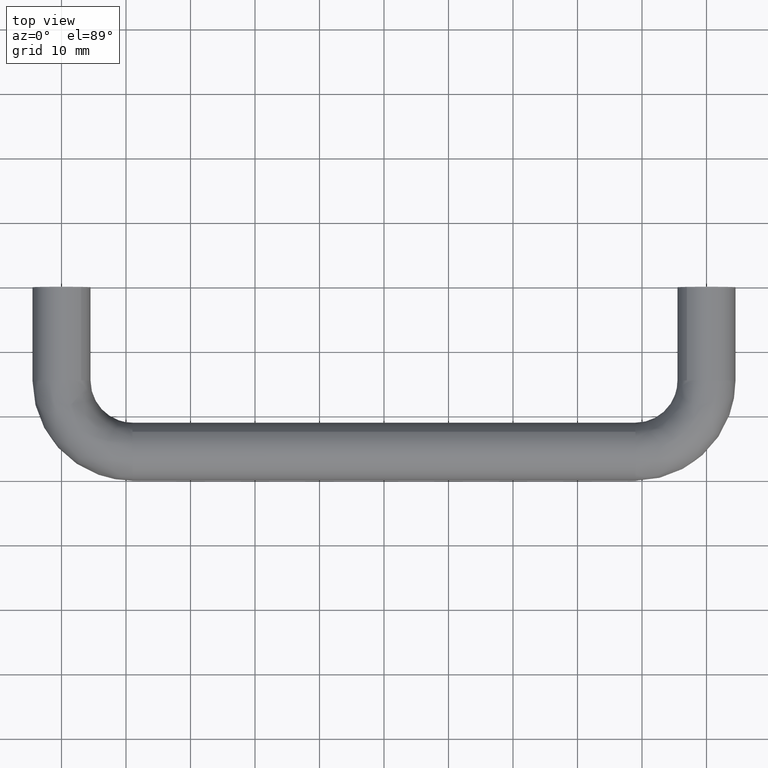
[diagram: clean part render]
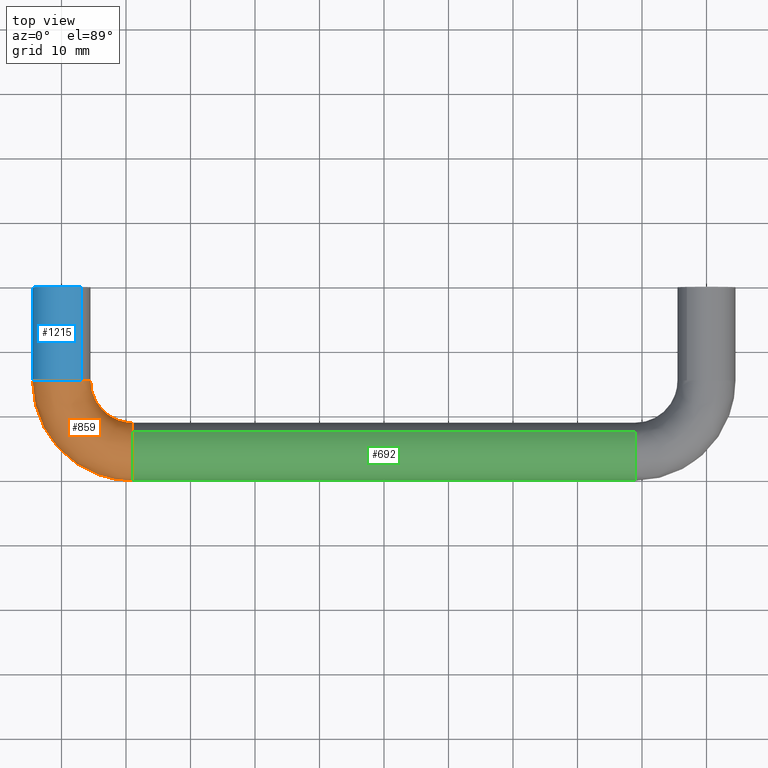
[diagram: same view with three faces highlighted in distinct colors, each labeled with its STEP entity id]
A machine part, top view with three faces highlighted in distinct colors.
Their STEP definitions:

[orange] entity #859 — the highlighted face is a freeform B-spline surface patch.
#638=CARTESIAN_POINT('',(10.999999999880201,-22.459843823615191,3.317748237039413));
#639=VERTEX_POINT('',#638);
#645=CARTESIAN_POINT('',(10.999999999883840,-25.499998687811591,4.499999999999809));
#646=VERTEX_POINT('',#645);
#647=CARTESIAN_POINT('',(10.999999999883840,-25.499998687811591,4.499999999999809));
#648=CARTESIAN_POINT('',(10.999999999883370,-25.100123969899130,4.500126282342575));
#649=CARTESIAN_POINT('',(10.999999999882469,-24.370025223770899,4.402028024359899));
#650=CARTESIAN_POINT('',(10.999999999881251,-23.329081392418381,3.990259466095463));
#651=CARTESIAN_POINT('',(10.999999999880510,-22.741775837838151,3.576220248539382));
#652=CARTESIAN_POINT('',(10.999999999880201,-22.459843823615191,3.317748237039413));
#653=B_SPLINE_CURVE_WITH_KNOTS('',3,(#647,#648,#649,#650,#651,#652),.UNSPECIFIED.,.F.,.U.,(4,1,1,4),(0.000000026926751,1.199587281473236,2.190534403057617,3.337959714144660),.UNSPECIFIED.);
#654=EDGE_CURVE('',#646,#639,#653,.T.);
#656=CARTESIAN_POINT('',(10.999999999889230,-30.0,-5.510729E-016));
#657=VERTEX_POINT('',#656);
#658=CARTESIAN_POINT('',(10.999999999889230,-30.0,-5.510729E-016));
#659=CARTESIAN_POINT('',(10.999999999889271,-30.000043854508590,0.312928321362743));
#660=CARTESIAN_POINT('',(10.999999999889070,-29.934449461283890,0.938769845450301));
#661=CARTESIAN_POINT('',(10.999999999888830,-29.615498342230769,1.924962716455199));
#662=CARTESIAN_POINT('',(10.999999999888100,-29.108741132140061,2.747267614448893));
#663=CARTESIAN_POINT('',(10.999999999887359,-28.378260842452370,3.505192382957049));
#664=CARTESIAN_POINT('',(10.999999999886271,-27.683261742119750,3.969591134576757));
#665=CARTESIAN_POINT('',(10.999999999885411,-26.677905280997859,4.385942188070408));
#666=CARTESIAN_POINT('',(10.999999999884110,-25.997073714310289,4.500364777699755));
#667=CARTESIAN_POINT('',(10.999999999883840,-25.499998687811591,4.499999999999809));
#668=B_SPLINE_CURVE_WITH_KNOTS('',3,(#658,#659,#660,#661,#662,#663,#664,#665,#666,#667),.UNSPECIFIED.,.F.,.U.,(4,1,1,1,1,1,1,4),(0.000000129995519,0.938782926622967,1.877607161343160,3.092528891051027,3.810418333421179,5.025345881809949,5.577597024606300,7.068628562522968),.UNSPECIFIED.);
#669=EDGE_CURVE('',#657,#646,#668,.T.);
#726=CARTESIAN_POINT('',(10.999999999878449,-21.0,-2.209820E-016));
#727=VERTEX_POINT('',#726);
#741=CARTESIAN_POINT('',(10.999999999880201,-22.459843823615191,3.317748237039413));
#742=CARTESIAN_POINT('',(10.999999999879940,-22.201926550637989,3.081512662578266));
#743=CARTESIAN_POINT('',(10.999999999879339,-21.780030710565210,2.592897143344239));
#744=CARTESIAN_POINT('',(10.999999999878840,-21.313113446799491,1.735683704273253));
#745=CARTESIAN_POINT('',(10.999999999878510,-21.054747586120399,0.874376863765460));
#746=CARTESIAN_POINT('',(10.999999999878449,-20.999983163822840,0.272025064617414));
#747=CARTESIAN_POINT('',(10.999999999878449,-21.0,-2.209820E-016));
#748=B_SPLINE_CURVE_WITH_KNOTS('',3,(#741,#742,#743,#744,#745,#746,#747),.UNSPECIFIED.,.F.,.U.,(4,1,1,1,4),(0.000000036383026,1.049251759939157,1.923606279414480,2.914585473656105,3.730667463817055),.UNSPECIFIED.);
#749=EDGE_CURVE('',#639,#727,#748,.T.);
#755=CARTESIAN_POINT('',(-4.462881655769514,-13.427950141240375,-0.125805319613362));
#756=CARTESIAN_POINT('',(-5.695589017263568,-31.208100841537551,-0.125805319613362));
#757=CARTESIAN_POINT('',(12.083633238175535,-29.962074214190057,-0.125805319613362));
#758=CARTESIAN_POINT('',(-4.462881655769513,-13.427950141240379,-0.063268989149130));
#759=CARTESIAN_POINT('',(-5.695589017263568,-31.208100841537565,-0.063268989149130));
#760=CARTESIAN_POINT('',(12.083633238175540,-29.962074214190050,-0.063268989149130));
#761=CARTESIAN_POINT('',(-4.462881655769511,-13.427950141240375,4.499999999999997));
#762=CARTESIAN_POINT('',(-5.695589017263568,-31.208100841537568,4.499999999999997));
#763=CARTESIAN_POINT('',(12.083633238175533,-29.962074214190050,4.499999999999997));
#764=CARTESIAN_POINT('',(0.026342050744216,-13.739190422815753,4.499999999999999));
#765=CARTESIAN_POINT('',(-0.848482528380597,-26.357361887542787,4.499999999999998));
#766=CARTESIAN_POINT('',(11.769030039995547,-25.473084926199402,4.499999999999998));
#767=CARTESIAN_POINT('',(4.515565757257944,-14.050430704391124,4.499999999999997));
#768=CARTESIAN_POINT('',(3.998623960502376,-21.506622933548012,4.499999999999997));
#769=CARTESIAN_POINT('',(11.454426841815549,-20.984095638208736,4.499999999999997));
#770=CARTESIAN_POINT('',(4.515565757257948,-14.050430704391127,-0.063268989149130));
#771=CARTESIAN_POINT('',(3.998623960502376,-21.506622933548009,-0.063268989149130));
#772=CARTESIAN_POINT('',(11.454426841815552,-20.984095638208732,-0.063268989149130));
#773=CARTESIAN_POINT('',(4.515565757257948,-14.050430704391131,-0.125805319613362));
#774=CARTESIAN_POINT('',(3.998623960502376,-21.506622933548012,-0.125805319613363));
#775=CARTESIAN_POINT('',(11.454426841815545,-20.984095638208739,-0.125805319613363));
#783=(BOUNDED_SURFACE()B_SPLINE_SURFACE(2,2,((#755,#758,#761,#764,#767,#770,#773),(#756,#759,#762,#765,#768,#771,#774),(#757,#760,#763,#766,#769,#772,#775)),.UNSPECIFIED.,.F.,.F.,.U.)B_SPLINE_SURFACE_WITH_KNOTS((3,3),(3,1,2,1,3),(0.0,28.246572312401589),(0.0,0.149116882454315,7.604961005170030,15.060805127885750,15.209922010340060),.UNSPECIFIED.)GEOMETRIC_REPRESENTATION_ITEM()RATIONAL_B_SPLINE_SURFACE(((0.932283873808976,0.926885922252278,0.651590392860676,0.921487970695580,0.651590392860676,0.926885922252278,0.932283873808977),(0.608398400205757,0.604875755243482,0.425220862167464,0.601353110281207,0.425220862167464,0.604875755243482,0.608398400205757),(0.921984264842575,0.916645948330325,0.644391806205615,0.911307631818076,0.644391806205615,0.916645948330325,0.921984264842575)))REPRESENTATION_ITEM('')SURFACE());
#784=CARTESIAN_POINT('',(-4.499999999999998,-14.500000000074150,-5.510729E-016));
#785=VERTEX_POINT('',#784);
#786=CARTESIAN_POINT('',(-4.499999999999998,-14.500000000074150,-5.510729E-016));
#787=CARTESIAN_POINT('',(-4.500050009750489,-15.355957649346831,-4.775915E-016));
#788=CARTESIAN_POINT('',(-4.352604959209121,-17.131275159191439,-3.378517E-016));
#789=CARTESIAN_POINT('',(-3.767346380240489,-19.379778854053530,-1.950755E-016));
#790=CARTESIAN_POINT('',(-2.776076494341774,-21.752464871044889,-7.649198E-017));
#791=CARTESIAN_POINT('',(-1.498588775085845,-23.811620489991981,-9.392070E-018));
#792=CARTESIAN_POINT('',(0.102664166051576,-25.578014694200348,4.783981E-018));
#793=CARTESIAN_POINT('',(1.664864063261271,-26.925585038074420,-1.364024E-017));
#794=CARTESIAN_POINT('',(3.678112422541562,-28.262120847539538,-7.173058E-017));
#795=CARTESIAN_POINT('',(5.908302225031168,-29.210027933230151,-1.818043E-016));
#796=CARTESIAN_POINT('',(8.463878001525986,-29.850019470746322,-3.462418E-016));
#797=CARTESIAN_POINT('',(9.985518575153487,-30.000144163950161,-4.639754E-016));
#798=CARTESIAN_POINT('',(10.999999999889230,-30.0,-5.510729E-016));
#799=B_SPLINE_CURVE_WITH_KNOTS('',3,(#786,#787,#788,#789,#790,#791,#792,#793,#794,#795,#796,#797,#798),.UNSPECIFIED.,.F.,.U.,(4,1,1,1,1,1,1,1,1,1,4),(0.000000068214565,2.567873580848037,5.325984320747683,6.942810691561316,10.271582378872120,12.554083748895909,14.075799424827270,16.453490098125840,19.782251822845652,21.303971918716119,24.347381259133510),.UNSPECIFIED.);
#800=EDGE_CURVE('',#785,#657,#799,.T.);
#801=ORIENTED_EDGE('',*,*,#800,.T.);
#802=ORIENTED_EDGE('',*,*,#669,.T.);
#803=ORIENTED_EDGE('',*,*,#654,.T.);
#804=ORIENTED_EDGE('',*,*,#749,.T.);
#805=CARTESIAN_POINT('',(4.500000000000002,-14.500000000129740,-1.105386E-016));
#806=VERTEX_POINT('',#805);
#807=CARTESIAN_POINT('',(4.500000000000002,-14.500000000129740,-1.105386E-016));
#808=CARTESIAN_POINT('',(4.499967433719538,-14.898834046942730,-1.543942E-016));
#809=CARTESIAN_POINT('',(4.576076023365991,-15.723087760096851,-2.379474E-016));
#810=CARTESIAN_POINT('',(4.881165445999225,-16.775146901522270,-3.252620E-016));
#811=CARTESIAN_POINT('',(5.370939403156898,-17.810675686840280,-3.935907E-016));
#812=CARTESIAN_POINT('',(6.057540370798526,-18.798507558164228,-4.383778E-016));
#813=CARTESIAN_POINT('',(7.174709303796848,-19.836394799741800,-4.486428E-016));
#814=CARTESIAN_POINT('',(8.420505796980002,-20.522123544204110,-4.082300E-016));
#815=CARTESIAN_POINT('',(9.750360806165991,-20.916421039572999,-3.279596E-016));
#816=CARTESIAN_POINT('',(10.547990123140041,-21.000070064836830,-2.630088E-016));
#817=CARTESIAN_POINT('',(10.999999999878449,-21.0,-2.209820E-016));
#818=B_SPLINE_CURVE_WITH_KNOTS('',3,(#807,#808,#809,#810,#811,#812,#813,#814,#815,#816,#817),.UNSPECIFIED.,.F.,.U.,(4,1,1,1,1,1,1,1,4),(0.000000105310674,1.196507849083419,2.472791450141632,3.270470643849758,4.626550626128445,6.062322321907257,7.817215647317670,8.854213433333728,10.210240188551619),.UNSPECIFIED.);
#819=EDGE_CURVE('',#806,#727,#818,.T.);
#820=ORIENTED_EDGE('',*,*,#819,.F.);
#821=CARTESIAN_POINT('',(3.040156176654295,-14.500000000122670,3.317748236792479));
#822=VERTEX_POINT('',#821);
#823=CARTESIAN_POINT('',(3.040156176654295,-14.500000000122670,3.317748236792479));
#824=CARTESIAN_POINT('',(3.298069348786968,-14.500000000124100,3.081511910539740));
#825=CARTESIAN_POINT('',(3.771139364999521,-14.500000000126761,2.533682016927465));
#826=CARTESIAN_POINT('',(4.341874538636727,-14.500000000129550,1.418218417439457));
#827=CARTESIAN_POINT('',(4.500383158145811,-14.500000000130070,0.524671110956293));
#828=CARTESIAN_POINT('',(4.500000000000002,-14.500000000129740,-1.105386E-016));
#829=B_SPLINE_CURVE_WITH_KNOTS('',3,(#823,#824,#825,#826,#827,#828),.UNSPECIFIED.,.F.,.U.,(4,1,1,4),(0.000000036382541,1.049251759836289,2.156779378508933,3.730667463451535),.UNSPECIFIED.);
#830=EDGE_CURVE('',#822,#806,#829,.T.);
#831=ORIENTED_EDGE('',*,*,#830,.F.);
#832=CARTESIAN_POINT('',(0.000001312188405,-14.500000000101950,4.499999999999809));
#833=VERTEX_POINT('',#832);
#834=CARTESIAN_POINT('',(0.000001312188405,-14.500000000101950,4.499999999999809));
#835=CARTESIAN_POINT('',(0.521620331786083,-14.500000000105510,4.500399133395852));
#836=CARTESIAN_POINT('',(1.338434306594702,-14.500000000111060,4.356280274332322));
#837=CARTESIAN_POINT('',(2.346985209000019,-14.500000000117939,3.873645738317406));
#838=CARTESIAN_POINT('',(2.822277933545134,-14.500000000121180,3.517444863820397));
#839=CARTESIAN_POINT('',(3.040156176654295,-14.500000000122670,3.317748236792479));
#840=B_SPLINE_CURVE_WITH_KNOTS('',3,(#834,#835,#836,#837,#838,#839),.UNSPECIFIED.,.F.,.U.,(4,1,1,4),(0.000000026927414,1.564679269113191,2.451313561360027,3.337959714510169),.UNSPECIFIED.);
#841=EDGE_CURVE('',#833,#822,#840,.T.);
#842=ORIENTED_EDGE('',*,*,#841,.F.);
#843=CARTESIAN_POINT('',(-4.499999999999998,-14.500000000074150,-5.510729E-016));
#844=CARTESIAN_POINT('',(-4.500046469109019,-14.500000000074150,0.312928996834377));
#845=CARTESIAN_POINT('',(-4.436374457072158,-14.500000000074520,0.920364390603272));
#846=CARTESIAN_POINT('',(-4.151541423136073,-14.500000000076341,1.819673829550463));
#847=CARTESIAN_POINT('',(-3.758974593119281,-14.500000000078710,2.512581490235004));
#848=CARTESIAN_POINT('',(-3.248207038957235,-14.500000000081849,3.142769889272184));
#849=CARTESIAN_POINT('',(-2.600154515440730,-14.500000000085921,3.723064668810182));
#850=CARTESIAN_POINT('',(-1.768072493265288,-14.500000000091029,4.174380710731998));
#851=CARTESIAN_POINT('',(-0.865134281128408,-14.500000000096801,4.442143717013857));
#852=CARTESIAN_POINT('',(-0.312926910566300,-14.500000000099750,4.500050294161374));
#853=CARTESIAN_POINT('',(0.000001312188405,-14.500000000101950,4.499999999999809));
#854=B_SPLINE_CURVE_WITH_KNOTS('',3,(#843,#844,#845,#846,#847,#848,#849,#850,#851,#852,#853),.UNSPECIFIED.,.F.,.U.,(4,1,1,1,1,1,1,1,4),(0.000000129993113,0.938782926621138,1.822381456434028,2.816411401928808,3.313457928304550,4.252219692170336,5.411920949000251,6.129847600345807,7.068628562522968),.UNSPECIFIED.);
#855=EDGE_CURVE('',#785,#833,#854,.T.);
#856=ORIENTED_EDGE('',*,*,#855,.F.);
#857=EDGE_LOOP('',(#801,#802,#803,#804,#820,#831,#842,#856));
#858=FACE_OUTER_BOUND('',#857,.T.);
#859=ADVANCED_FACE('',(#858),#783,.T.);

[blue] entity #1215 — the highlighted face is a freeform B-spline surface patch.
#784=CARTESIAN_POINT('',(-4.499999999999998,-14.500000000074150,-5.510729E-016));
#785=VERTEX_POINT('',#784);
#821=CARTESIAN_POINT('',(3.040156176654295,-14.500000000122670,3.317748236792479));
#822=VERTEX_POINT('',#821);
#832=CARTESIAN_POINT('',(0.000001312188405,-14.500000000101950,4.499999999999809));
#833=VERTEX_POINT('',#832);
#834=CARTESIAN_POINT('',(0.000001312188405,-14.500000000101950,4.499999999999809));
#835=CARTESIAN_POINT('',(0.521620331786083,-14.500000000105510,4.500399133395852));
#836=CARTESIAN_POINT('',(1.338434306594702,-14.500000000111060,4.356280274332322));
#837=CARTESIAN_POINT('',(2.346985209000019,-14.500000000117939,3.873645738317406));
#838=CARTESIAN_POINT('',(2.822277933545134,-14.500000000121180,3.517444863820397));
#839=CARTESIAN_POINT('',(3.040156176654295,-14.500000000122670,3.317748236792479));
#840=B_SPLINE_CURVE_WITH_KNOTS('',3,(#834,#835,#836,#837,#838,#839),.UNSPECIFIED.,.F.,.U.,(4,1,1,4),(0.000000026927414,1.564679269113191,2.451313561360027,3.337959714510169),.UNSPECIFIED.);
#841=EDGE_CURVE('',#833,#822,#840,.T.);
#843=CARTESIAN_POINT('',(-4.499999999999998,-14.500000000074150,-5.510729E-016));
#844=CARTESIAN_POINT('',(-4.500046469109019,-14.500000000074150,0.312928996834377));
#845=CARTESIAN_POINT('',(-4.436374457072158,-14.500000000074520,0.920364390603272));
#846=CARTESIAN_POINT('',(-4.151541423136073,-14.500000000076341,1.819673829550463));
#847=CARTESIAN_POINT('',(-3.758974593119281,-14.500000000078710,2.512581490235004));
#848=CARTESIAN_POINT('',(-3.248207038957235,-14.500000000081849,3.142769889272184));
#849=CARTESIAN_POINT('',(-2.600154515440730,-14.500000000085921,3.723064668810182));
#850=CARTESIAN_POINT('',(-1.768072493265288,-14.500000000091029,4.174380710731998));
#851=CARTESIAN_POINT('',(-0.865134281128408,-14.500000000096801,4.442143717013857));
#852=CARTESIAN_POINT('',(-0.312926910566300,-14.500000000099750,4.500050294161374));
#853=CARTESIAN_POINT('',(0.000001312188405,-14.500000000101950,4.499999999999809));
#854=B_SPLINE_CURVE_WITH_KNOTS('',3,(#843,#844,#845,#846,#847,#848,#849,#850,#851,#852,#853),.UNSPECIFIED.,.F.,.U.,(4,1,1,1,1,1,1,1,4),(0.000000129993113,0.938782926621138,1.822381456434028,2.816411401928808,3.313457928304550,4.252219692170336,5.411920949000251,6.129847600345807,7.068628562522968),.UNSPECIFIED.);
#855=EDGE_CURVE('',#785,#833,#854,.T.);
#890=CARTESIAN_POINT('',(-3.040156176654291,-14.500000000085111,-3.317748236792479));
#891=VERTEX_POINT('',#890);
#892=CARTESIAN_POINT('',(-3.040156176654291,-14.500000000085111,-3.317748236792479));
#893=CARTESIAN_POINT('',(-3.298072887182412,-14.500000000083370,-3.081512231164429));
#894=CARTESIAN_POINT('',(-3.719979370073079,-14.500000000080471,-2.592900716720671));
#895=CARTESIAN_POINT('',(-4.140150479050720,-14.500000000077479,-1.821393749278290));
#896=CARTESIAN_POINT('',(-4.425433006795216,-14.500000000075079,-0.971488482656748));
#897=CARTESIAN_POINT('',(-4.500101718809662,-14.500000000074470,-0.369189426660170));
#898=CARTESIAN_POINT('',(-4.499999999999998,-14.500000000074150,-5.510729E-016));
#899=B_SPLINE_CURVE_WITH_KNOTS('',3,(#892,#893,#894,#895,#896,#897,#898),.UNSPECIFIED.,.F.,.U.,(4,1,1,1,4),(0.000000036382506,1.049251759836285,1.923606279225992,2.623121235003755,3.730667463451536),.UNSPECIFIED.);
#900=EDGE_CURVE('',#891,#785,#899,.T.);
#1143=CARTESIAN_POINT('',(3.040155934270470,0.362500000003245,3.317748015645557));
#1144=CARTESIAN_POINT('',(-0.277592081375087,0.362500000003245,6.357903949916027));
#1145=CARTESIAN_POINT('',(-3.317748015645557,0.362500000003244,3.040155934270470));
#1146=CARTESIAN_POINT('',(-6.357903949916027,0.362500000003244,-0.277592081375087));
#1147=CARTESIAN_POINT('',(-3.040155934270470,0.362500000003244,-3.317748015645557));
#1148=CARTESIAN_POINT('',(3.040155934270472,-14.871562500133070,3.317748015645557));
#1149=CARTESIAN_POINT('',(-0.277592081375086,-14.871562500133068,6.357903949916027));
#1150=CARTESIAN_POINT('',(-3.317748015645555,-14.871562500133070,3.040155934270470));
#1151=CARTESIAN_POINT('',(-6.357903949916027,-14.871562500133068,-0.277592081375087));
#1152=CARTESIAN_POINT('',(-3.040155934270468,-14.871562500133070,-3.317748015645557));
#1160=(BOUNDED_SURFACE()B_SPLINE_SURFACE(2,1,((#1143,#1148),(#1144,#1149),(#1145,#1150),(#1146,#1151),(#1147,#1152)),.UNSPECIFIED.,.F.,.F.,.U.)B_SPLINE_SURFACE_WITH_KNOTS((3,2,3),(2,2),(0.0,7.455844122715709,14.911688245431421),(0.0,15.234062500136320),.UNSPECIFIED.)GEOMETRIC_REPRESENTATION_ITEM()RATIONAL_B_SPLINE_SURFACE(((1.0,1.0),(0.707106781186548,0.707106781186548),(1.0,1.0),(0.707106781186548,0.707106781186548),(1.0,1.0)))REPRESENTATION_ITEM('')SURFACE());
#1161=ORIENTED_EDGE('',*,*,#841,.T.);
#1162=CARTESIAN_POINT('',(3.040156176384802,8.326673E-017,3.317748237039399));
#1163=VERTEX_POINT('',#1162);
#1164=CARTESIAN_POINT('',(3.040156176384802,8.326673E-017,3.317748237039399));
#1165=CARTESIAN_POINT('',(3.040156176654295,-14.500000000122670,3.317748236792479));
#1166=QUASI_UNIFORM_CURVE('',1,(#1164,#1165),.UNSPECIFIED.,.F.,.U.);
#1167=EDGE_CURVE('',#1163,#822,#1166,.T.);
#1168=ORIENTED_EDGE('',*,*,#1167,.F.);
#1169=CARTESIAN_POINT('',(0.000001312188337,0.0,4.499999999999809));
#1170=VERTEX_POINT('',#1169);
#1171=CARTESIAN_POINT('',(0.000001312188337,0.0,4.499999999999809));
#1172=CARTESIAN_POINT('',(0.382485793363066,1.047586E-017,4.500113346225661));
#1173=CARTESIAN_POINT('',(1.025669210956818,2.809199E-017,4.417461834593251));
#1174=CARTESIAN_POINT('',(2.077916398098115,5.691196E-017,4.043033446439282));
#1175=CARTESIAN_POINT('',(2.694226469264998,7.379207E-017,3.635088376880249));
#1176=CARTESIAN_POINT('',(3.040156176384802,8.326673E-017,3.317748237039399));
#1177=B_SPLINE_CURVE_WITH_KNOTS('',3,(#1171,#1172,#1173,#1174,#1175,#1176),.UNSPECIFIED.,.F.,.U.,(4,1,1,4),(0.000000026927611,1.147424852948745,1.929756751698764,3.337959714144722),.UNSPECIFIED.);
#1178=EDGE_CURVE('',#1170,#1163,#1177,.T.);
#1179=ORIENTED_EDGE('',*,*,#1178,.F.);
#1180=CARTESIAN_POINT('',(-4.500000000000000,0.0,0.0));
#1181=VERTEX_POINT('',#1180);
#1182=CARTESIAN_POINT('',(-4.500000000000000,0.0,0.0));
#1183=CARTESIAN_POINT('',(-4.500138134709999,0.0,0.404984104536468));
#1184=CARTESIAN_POINT('',(-4.414917522623759,0.0,1.030766526348588));
#1185=CARTESIAN_POINT('',(-4.122621175093767,0.0,1.847573733650020));
#1186=CARTESIAN_POINT('',(-3.770425191872187,0.0,2.496872809099469));
#1187=CARTESIAN_POINT('',(-3.220293995745289,0.0,3.193076223265994));
#1188=CARTESIAN_POINT('',(-2.446112742482206,0.0,3.828445502567796));
#1189=CARTESIAN_POINT('',(-1.343589709297263,0.0,4.358244377824254));
#1190=CARTESIAN_POINT('',(-0.497042624677315,0.0,4.500283759360841));
#1191=CARTESIAN_POINT('',(0.000001312188337,0.0,4.499999999999809));
#1192=B_SPLINE_CURVE_WITH_KNOTS('',3,(#1182,#1183,#1184,#1185,#1186,#1187,#1188,#1189,#1190,#1191),.UNSPECIFIED.,.F.,.U.,(4,1,1,1,1,1,1,4),(0.000000129991314,1.214907182096127,1.877607161340406,2.595533570554088,3.423897323054392,4.528335762590454,5.577597024605669,7.068628562522949),.UNSPECIFIED.);
#1193=EDGE_CURVE('',#1181,#1170,#1192,.T.);
#1194=ORIENTED_EDGE('',*,*,#1193,.F.);
#1195=CARTESIAN_POINT('',(-3.040156176384814,-2.775558E-016,-3.317748237039412));
#1196=VERTEX_POINT('',#1195);
#1197=CARTESIAN_POINT('',(-3.040156176384814,-2.775558E-016,-3.317748237039412));
#1198=CARTESIAN_POINT('',(-3.312414476299837,-2.566957E-016,-3.068399162579309));
#1199=CARTESIAN_POINT('',(-3.782243331911269,-2.105720E-016,-2.517061971857980));
#1200=CARTESIAN_POINT('',(-4.345285553857915,-1.170182E-016,-1.398770504972060));
#1201=CARTESIAN_POINT('',(-4.500403452646276,-4.389369E-017,-0.524680944021844));
#1202=CARTESIAN_POINT('',(-4.500000000000000,0.0,0.0));
#1203=B_SPLINE_CURVE_WITH_KNOTS('',3,(#1197,#1198,#1199,#1200,#1201,#1202),.UNSPECIFIED.,.F.,.U.,(4,1,1,4),(0.000000036382732,1.107546264964507,2.156779378720267,3.730667463817051),.UNSPECIFIED.);
#1204=EDGE_CURVE('',#1196,#1181,#1203,.T.);
#1205=ORIENTED_EDGE('',*,*,#1204,.F.);
#1206=CARTESIAN_POINT('',(-3.040156176384814,-2.775558E-016,-3.317748237039412));
#1207=CARTESIAN_POINT('',(-3.040156176654291,-14.500000000085111,-3.317748236792479));
#1208=QUASI_UNIFORM_CURVE('',1,(#1206,#1207),.UNSPECIFIED.,.F.,.U.);
#1209=EDGE_CURVE('',#1196,#891,#1208,.T.);
#1210=ORIENTED_EDGE('',*,*,#1209,.T.);
#1211=ORIENTED_EDGE('',*,*,#900,.T.);
#1212=ORIENTED_EDGE('',*,*,#855,.T.);
#1213=EDGE_LOOP('',(#1161,#1168,#1179,#1194,#1205,#1210,#1211,#1212));
#1214=FACE_OUTER_BOUND('',#1213,.T.);
#1215=ADVANCED_FACE('',(#1214),#1160,.T.);

[green] entity #692 — the highlighted face is a freeform B-spline surface patch.
#470=CARTESIAN_POINT('',(89.000000000147381,-30.0,-5.510729E-016));
#471=VERTEX_POINT('',#470);
#508=CARTESIAN_POINT('',(89.000000000211301,-22.459843823345700,3.317748236792478));
#509=VERTEX_POINT('',#508);
#520=CARTESIAN_POINT('',(89.000000000185310,-25.499998687811591,4.499999999999809));
#521=VERTEX_POINT('',#520);
#522=CARTESIAN_POINT('',(89.000000000185310,-25.499998687811591,4.499999999999809));
#523=CARTESIAN_POINT('',(89.000000000188109,-25.187063342715071,4.500047495765340));
#524=CARTESIAN_POINT('',(89.000000000192628,-24.613386652937571,4.439894855533510));
#525=CARTESIAN_POINT('',(89.000000000202220,-23.544889057761019,4.114708523466404));
#526=CARTESIAN_POINT('',(89.000000000207947,-22.856936203971070,3.682253894163673));
#527=CARTESIAN_POINT('',(89.000000000211301,-22.459843823345700,3.317748236792478));
#528=B_SPLINE_CURVE_WITH_KNOTS('',3,(#522,#523,#524,#525,#526,#527),.UNSPECIFIED.,.F.,.U.,(4,1,1,4),(0.000000026925978,0.938803312619440,1.721117551272277,3.337959714510171),.UNSPECIFIED.);
#529=EDGE_CURVE('',#521,#509,#528,.T.);
#531=CARTESIAN_POINT('',(89.000000000147381,-30.0,-5.510729E-016));
#532=CARTESIAN_POINT('',(89.000000000147395,-30.000046234572650,0.312928722882716));
#533=CARTESIAN_POINT('',(89.000000000147892,-29.942158641374530,0.865142326922342));
#534=CARTESIAN_POINT('',(89.000000000149925,-29.700560299403701,1.679516007485722));
#535=CARTESIAN_POINT('',(89.000000000153534,-29.276543883644472,2.522189711355116));
#536=CARTESIAN_POINT('',(89.000000000159076,-28.594839140254031,3.332371608396679));
#537=CARTESIAN_POINT('',(89.000000000167901,-27.629258660050169,4.021321256805903));
#538=CARTESIAN_POINT('',(89.000000000174794,-26.586085903376230,4.416402584291364));
#539=CARTESIAN_POINT('',(89.000000000184230,-25.831330556002609,4.500027926427997));
#540=CARTESIAN_POINT('',(89.000000000185310,-25.499998687811591,4.499999999999809));
#541=B_SPLINE_CURVE_WITH_KNOTS('',3,(#531,#532,#533,#534,#535,#536,#537,#538,#539,#540),.UNSPECIFIED.,.F.,.U.,(4,1,1,1,1,1,1,4),(0.000000129986875,0.938782926615852,1.656708308289629,2.540295180787362,3.755170576370046,4.804454692762693,6.074607144324864,7.068628562522965),.UNSPECIFIED.);
#542=EDGE_CURVE('',#471,#521,#541,.T.);
#577=CARTESIAN_POINT('',(89.000000000160043,-28.540156176654289,-3.317748236792481));
#578=VERTEX_POINT('',#577);
#579=CARTESIAN_POINT('',(89.000000000160043,-28.540156176654289,-3.317748236792481));
#580=CARTESIAN_POINT('',(89.000000000158053,-28.798068999014991,-3.081512249655238));
#581=CARTESIAN_POINT('',(89.000000000153463,-29.271139962987021,-2.533681783172736));
#582=CARTESIAN_POINT('',(89.000000000149072,-29.841873316608339,-1.418218508929981));
#583=CARTESIAN_POINT('',(89.000000000147296,-30.000384694601468,-0.524671243063988));
#584=CARTESIAN_POINT('',(89.000000000147381,-30.0,-5.510729E-016));
#585=B_SPLINE_CURVE_WITH_KNOTS('',3,(#579,#580,#581,#582,#583,#584),.UNSPECIFIED.,.F.,.U.,(4,1,1,4),(0.000000036382927,1.049251759836454,2.156779378508924,3.730667463451539),.UNSPECIFIED.);
#586=EDGE_CURVE('',#578,#471,#585,.T.);
#619=CARTESIAN_POINT('',(9.049999999869829,-22.459844065729531,3.317748015645557));
#620=CARTESIAN_POINT('',(9.049999999869829,-25.777592081375094,6.357903949916027));
#621=CARTESIAN_POINT('',(9.049999999869829,-28.817748015645559,3.040155934270470));
#622=CARTESIAN_POINT('',(9.049999999869829,-31.857903949916025,-0.277592081375087));
#623=CARTESIAN_POINT('',(9.049999999869829,-28.540155934270469,-3.317748015645557));
#624=CARTESIAN_POINT('',(90.998750000232064,-22.459844065729520,3.317748015645557));
#625=CARTESIAN_POINT('',(90.998750000232064,-25.777592081375083,6.357903949916027));
#626=CARTESIAN_POINT('',(90.998750000232064,-28.817748015645549,3.040155934270470));
#627=CARTESIAN_POINT('',(90.998750000232064,-31.857903949916007,-0.277592081375087));
#628=CARTESIAN_POINT('',(90.998750000232064,-28.540155934270459,-3.317748015645557));
#636=(BOUNDED_SURFACE()B_SPLINE_SURFACE(2,1,((#619,#624),(#620,#625),(#621,#626),(#622,#627),(#623,#628)),.UNSPECIFIED.,.F.,.F.,.U.)B_SPLINE_SURFACE_WITH_KNOTS((3,2,3),(2,2),(0.0,7.455844122715709,14.911688245431421),(0.0,81.948750000362239),.UNSPECIFIED.)GEOMETRIC_REPRESENTATION_ITEM()RATIONAL_B_SPLINE_SURFACE(((1.0,1.0),(0.707106781186548,0.707106781186548),(1.0,1.0),(0.707106781186548,0.707106781186548),(1.0,1.0)))REPRESENTATION_ITEM('')SURFACE());
#637=ORIENTED_EDGE('',*,*,#529,.T.);
#638=CARTESIAN_POINT('',(10.999999999880201,-22.459843823615191,3.317748237039413));
#639=VERTEX_POINT('',#638);
#640=CARTESIAN_POINT('',(10.999999999880201,-22.459843823615191,3.317748237039413));
#641=CARTESIAN_POINT('',(89.000000000211301,-22.459843823345700,3.317748236792478));
#642=QUASI_UNIFORM_CURVE('',1,(#640,#641),.UNSPECIFIED.,.F.,.U.);
#643=EDGE_CURVE('',#639,#509,#642,.T.);
#644=ORIENTED_EDGE('',*,*,#643,.F.);
#645=CARTESIAN_POINT('',(10.999999999883840,-25.499998687811591,4.499999999999809));
#646=VERTEX_POINT('',#645);
#647=CARTESIAN_POINT('',(10.999999999883840,-25.499998687811591,4.499999999999809));
#648=CARTESIAN_POINT('',(10.999999999883370,-25.100123969899130,4.500126282342575));
#649=CARTESIAN_POINT('',(10.999999999882469,-24.370025223770899,4.402028024359899));
#650=CARTESIAN_POINT('',(10.999999999881251,-23.329081392418381,3.990259466095463));
#651=CARTESIAN_POINT('',(10.999999999880510,-22.741775837838151,3.576220248539382));
#652=CARTESIAN_POINT('',(10.999999999880201,-22.459843823615191,3.317748237039413));
#653=B_SPLINE_CURVE_WITH_KNOTS('',3,(#647,#648,#649,#650,#651,#652),.UNSPECIFIED.,.F.,.U.,(4,1,1,4),(0.000000026926751,1.199587281473236,2.190534403057617,3.337959714144660),.UNSPECIFIED.);
#654=EDGE_CURVE('',#646,#639,#653,.T.);
#655=ORIENTED_EDGE('',*,*,#654,.F.);
#656=CARTESIAN_POINT('',(10.999999999889230,-30.0,-5.510729E-016));
#657=VERTEX_POINT('',#656);
#658=CARTESIAN_POINT('',(10.999999999889230,-30.0,-5.510729E-016));
#659=CARTESIAN_POINT('',(10.999999999889271,-30.000043854508590,0.312928321362743));
#660=CARTESIAN_POINT('',(10.999999999889070,-29.934449461283890,0.938769845450301));
#661=CARTESIAN_POINT('',(10.999999999888830,-29.615498342230769,1.924962716455199));
#662=CARTESIAN_POINT('',(10.999999999888100,-29.108741132140061,2.747267614448893));
#663=CARTESIAN_POINT('',(10.999999999887359,-28.378260842452370,3.505192382957049));
#664=CARTESIAN_POINT('',(10.999999999886271,-27.683261742119750,3.969591134576757));
#665=CARTESIAN_POINT('',(10.999999999885411,-26.677905280997859,4.385942188070408));
#666=CARTESIAN_POINT('',(10.999999999884110,-25.997073714310289,4.500364777699755));
#667=CARTESIAN_POINT('',(10.999999999883840,-25.499998687811591,4.499999999999809));
#668=B_SPLINE_CURVE_WITH_KNOTS('',3,(#658,#659,#660,#661,#662,#663,#664,#665,#666,#667),.UNSPECIFIED.,.F.,.U.,(4,1,1,1,1,1,1,4),(0.000000129995519,0.938782926622967,1.877607161343160,3.092528891051027,3.810418333421179,5.025345881809949,5.577597024606300,7.068628562522968),.UNSPECIFIED.);
#669=EDGE_CURVE('',#657,#646,#668,.T.);
#670=ORIENTED_EDGE('',*,*,#669,.F.);
#671=CARTESIAN_POINT('',(10.999999999887480,-28.540156176384809,-3.317748237039410));
#672=VERTEX_POINT('',#671);
#673=CARTESIAN_POINT('',(10.999999999887480,-28.540156176384809,-3.317748237039410));
#674=CARTESIAN_POINT('',(10.999999999887830,-28.841094374745790,-3.042168033204405));
#675=CARTESIAN_POINT('',(10.999999999888431,-29.279416428226209,-2.514000978919796));
#676=CARTESIAN_POINT('',(10.999999999888770,-29.682883771287671,-1.712317664369438));
#677=CARTESIAN_POINT('',(10.999999999889271,-29.933948620933791,-0.913196398474195));
#678=CARTESIAN_POINT('',(10.999999999889139,-30.000084577875679,-0.349757497932895));
#679=CARTESIAN_POINT('',(10.999999999889230,-30.0,-5.510729E-016));
#680=B_SPLINE_CURVE_WITH_KNOTS('',3,(#673,#674,#675,#676,#677,#678,#679),.UNSPECIFIED.,.F.,.U.,(4,1,1,1,4),(0.000000036382727,1.224130083579019,2.040207201328659,2.681415740279319,3.730667463817048),.UNSPECIFIED.);
#681=EDGE_CURVE('',#672,#657,#680,.T.);
#682=ORIENTED_EDGE('',*,*,#681,.F.);
#683=CARTESIAN_POINT('',(10.999999999887480,-28.540156176384809,-3.317748237039410));
#684=CARTESIAN_POINT('',(89.000000000160043,-28.540156176654289,-3.317748236792481));
#685=QUASI_UNIFORM_CURVE('',1,(#683,#684),.UNSPECIFIED.,.F.,.U.);
#686=EDGE_CURVE('',#672,#578,#685,.T.);
#687=ORIENTED_EDGE('',*,*,#686,.T.);
#688=ORIENTED_EDGE('',*,*,#586,.T.);
#689=ORIENTED_EDGE('',*,*,#542,.T.);
#690=EDGE_LOOP('',(#637,#644,#655,#670,#682,#687,#688,#689));
#691=FACE_OUTER_BOUND('',#690,.T.);
#692=ADVANCED_FACE('',(#691),#636,.T.);